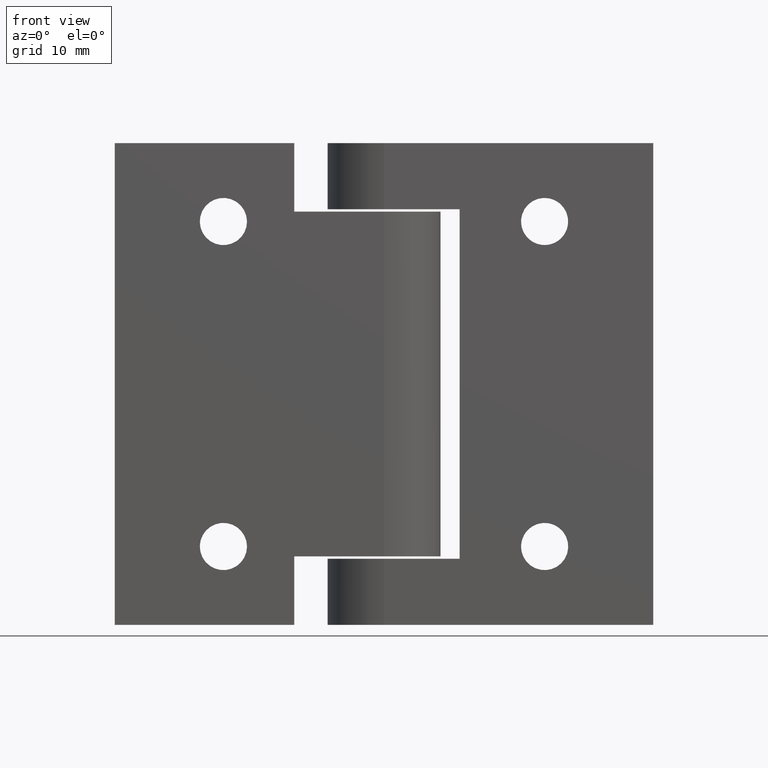
[diagram: clean part render]
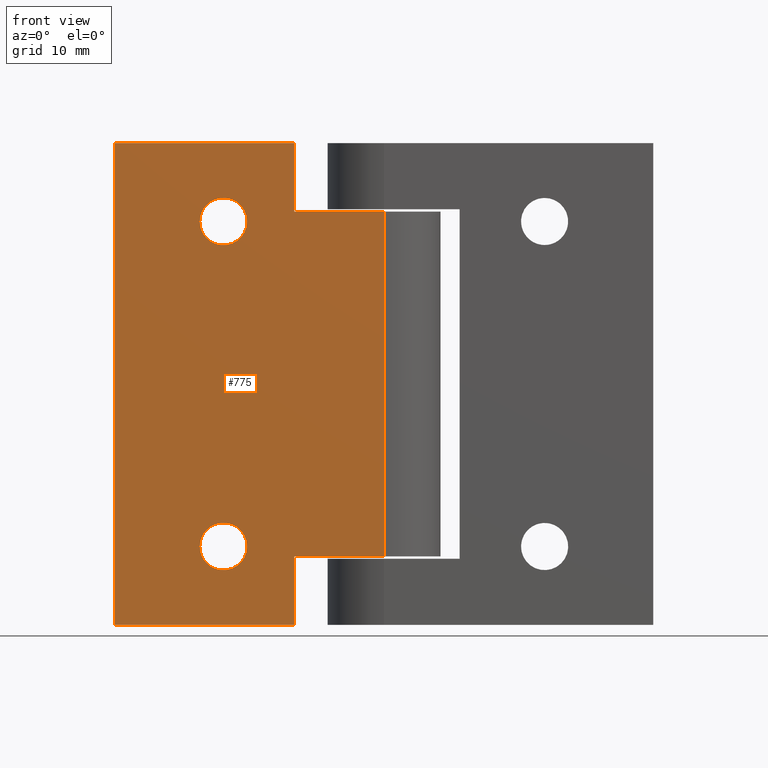
[diagram: same view with one face highlighted and labeled with its STEP entity id]
A machine part, front view. The second image highlights one B-rep face of the part: STEP entity #775.
In plain terms, the highlighted planar face has unit normal (-0, -1, 0).
Its self-contained STEP definition (entity closure, byte-faithful):
#48=FACE_BOUND('',#176,.T.);
#49=FACE_BOUND('',#177,.T.);
#71=PLANE('',#860);
#113=FACE_OUTER_BOUND('',#175,.T.);
#175=EDGE_LOOP('',(#695,#696,#697,#698,#699,#700,#701,#702));
#176=EDGE_LOOP('',(#703));
#177=EDGE_LOOP('',(#704));
#214=CIRCLE('',#847,2.5);
#215=CIRCLE('',#849,2.5);
#263=LINE('',#1335,#323);
#272=LINE('',#1362,#332);
#274=LINE('',#1365,#334);
#276=LINE('',#1373,#336);
#278=LINE('',#1378,#338);
#279=LINE('',#1380,#339);
#280=LINE('',#1382,#340);
#281=LINE('',#1383,#341);
#323=VECTOR('',#1035,9.5);
#332=VECTOR('',#1062,18.9999999999991);
#334=VECTOR('',#1066,7.25);
#336=VECTOR('',#1074,9.5);
#338=VECTOR('',#1080,7.25);
#339=VECTOR('',#1083,36.5);
#340=VECTOR('',#1084,18.9999999999991);
#341=VECTOR('',#1085,51.);
#397=VERTEX_POINT('',#1332);
#398=VERTEX_POINT('',#1334);
#401=VERTEX_POINT('',#1342);
#402=VERTEX_POINT('',#1345);
#406=VERTEX_POINT('',#1359);
#407=VERTEX_POINT('',#1361);
#409=VERTEX_POINT('',#1370);
#410=VERTEX_POINT('',#1372);
#411=VERTEX_POINT('',#1376);
#412=VERTEX_POINT('',#1381);
#489=EDGE_CURVE('',#398,#397,#263,.T.);
#493=EDGE_CURVE('',#401,#401,#214,.T.);
#494=EDGE_CURVE('',#402,#402,#215,.T.);
#502=EDGE_CURVE('',#406,#407,#272,.T.);
#504=EDGE_CURVE('',#406,#398,#274,.T.);
#507=EDGE_CURVE('',#410,#409,#276,.T.);
#510=EDGE_CURVE('',#409,#411,#278,.T.);
#511=EDGE_CURVE('',#397,#410,#279,.T.);
#512=EDGE_CURVE('',#412,#411,#280,.T.);
#513=EDGE_CURVE('',#412,#407,#281,.T.);
#695=ORIENTED_EDGE('',*,*,#504,.T.);
#696=ORIENTED_EDGE('',*,*,#489,.T.);
#697=ORIENTED_EDGE('',*,*,#511,.T.);
#698=ORIENTED_EDGE('',*,*,#507,.T.);
#699=ORIENTED_EDGE('',*,*,#510,.T.);
#700=ORIENTED_EDGE('',*,*,#512,.F.);
#701=ORIENTED_EDGE('',*,*,#513,.T.);
#702=ORIENTED_EDGE('',*,*,#502,.F.);
#703=ORIENTED_EDGE('',*,*,#493,.T.);
#704=ORIENTED_EDGE('',*,*,#494,.T.);
#775=ADVANCED_FACE('',(#113,#48,#49),#71,.T.);
#847=AXIS2_PLACEMENT_3D('',#1343,#1042,#1043);
#849=AXIS2_PLACEMENT_3D('',#1346,#1046,#1047);
#860=AXIS2_PLACEMENT_3D('',#1379,#1081,#1082);
#1035=DIRECTION('',(-1.,5.84327907697469E-17,0.));
#1042=DIRECTION('center_axis',(5.84327907697469E-17,1.,0.));
#1043=DIRECTION('ref_axis',(1.,2.77555756156302E-16,0.));
#1046=DIRECTION('center_axis',(5.84327907697469E-17,1.,0.));
#1047=DIRECTION('ref_axis',(1.,2.62947558463865E-16,0.));
#1062=DIRECTION('',(1.,-5.84327907697469E-17,0.));
#1066=DIRECTION('',(0.,0.,-1.));
#1074=DIRECTION('',(1.,-5.84327907697469E-17,0.));
#1080=DIRECTION('',(0.,0.,-1.));
#1081=DIRECTION('center_axis',(-5.84327907697469E-17,-1.,0.));
#1082=DIRECTION('ref_axis',(1.,-4.44089209850063E-17,0.));
#1083=DIRECTION('',(0.,0.,-1.));
#1084=DIRECTION('',(-1.,5.84327907697469E-17,0.));
#1085=DIRECTION('',(0.,0.,1.));
#1332=CARTESIAN_POINT('',(-14.2499999999995,-2.25,18.25));
#1334=CARTESIAN_POINT('',(-4.74999999999955,-2.25,18.25));
#1335=CARTESIAN_POINT('',(-17.2499999999995,-2.25,18.25));
#1342=CARTESIAN_POINT('',(0.249999999999544,-2.24999999999999,17.2));
#1343=CARTESIAN_POINT('Origin',(2.74999999999954,-2.24999999999999,17.2));
#1345=CARTESIAN_POINT('',(0.249999999999544,-2.24999999999999,-17.2));
#1346=CARTESIAN_POINT('Origin',(2.74999999999954,-2.24999999999999,-17.2));
#1359=CARTESIAN_POINT('',(-4.74999999999955,-2.25,25.5));
#1361=CARTESIAN_POINT('',(14.2499999999995,-2.25,25.5));
#1362=CARTESIAN_POINT('',(-14.2499999999995,-2.25,25.5));
#1365=CARTESIAN_POINT('',(-4.74999999999955,-2.25,9.125));
#1370=CARTESIAN_POINT('',(-4.74999999999955,-2.25,-18.25));
#1372=CARTESIAN_POINT('',(-14.2499999999995,-2.25,-18.25));
#1373=CARTESIAN_POINT('',(-9.49999999999955,-2.25,-18.25));
#1376=CARTESIAN_POINT('',(-4.74999999999955,-2.25,-25.5));
#1378=CARTESIAN_POINT('',(-4.74999999999955,-2.25,-12.75));
#1379=CARTESIAN_POINT('Origin',(-14.2499999999995,-2.25,0.));
#1380=CARTESIAN_POINT('',(-14.2499999999995,-2.25,0.));
#1381=CARTESIAN_POINT('',(14.2499999999995,-2.25,-25.5));
#1382=CARTESIAN_POINT('',(-14.2499999999995,-2.25,-25.5));
#1383=CARTESIAN_POINT('',(14.2499999999995,-2.25,0.));